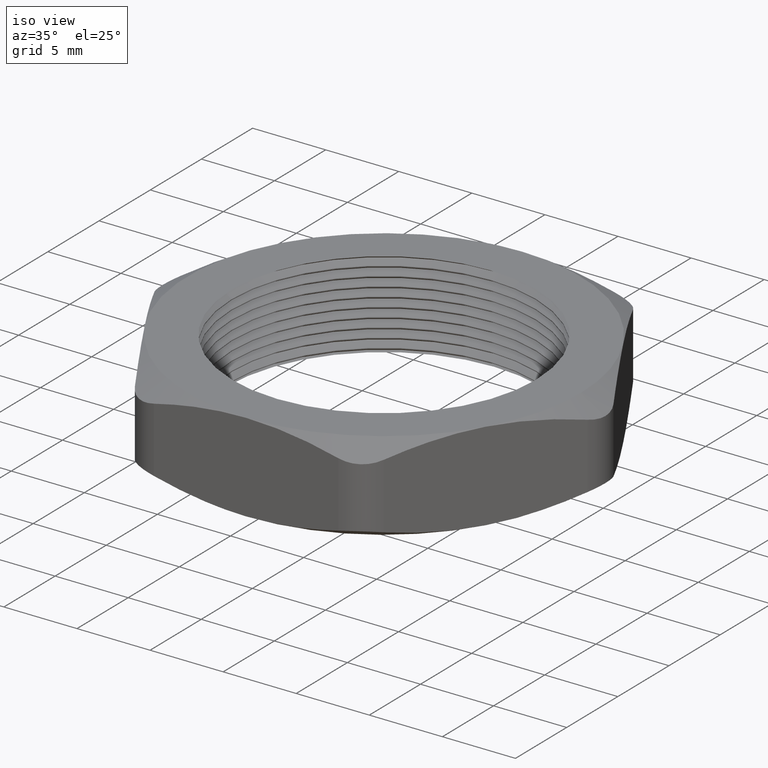
[diagram: clean part render]
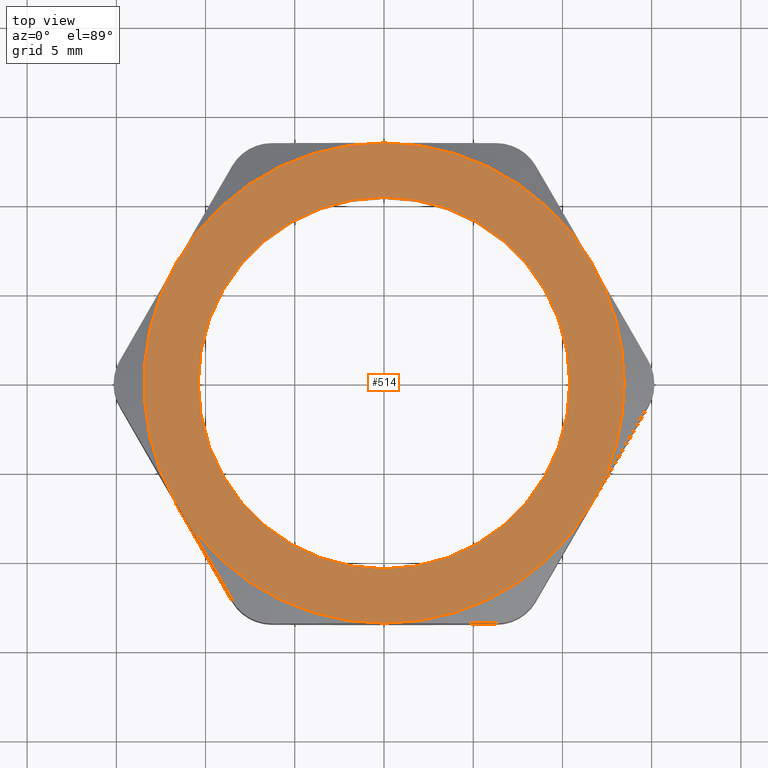
[diagram: tour spotlight — one face highlighted and labeled with its STEP entity id]
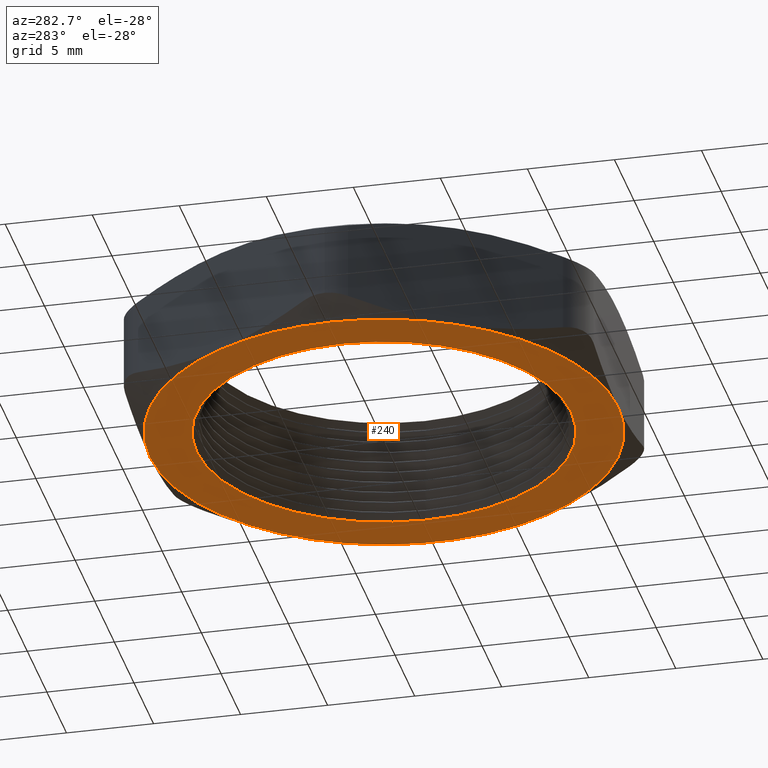
[diagram: tour spotlight — one face highlighted and labeled with its STEP entity id]
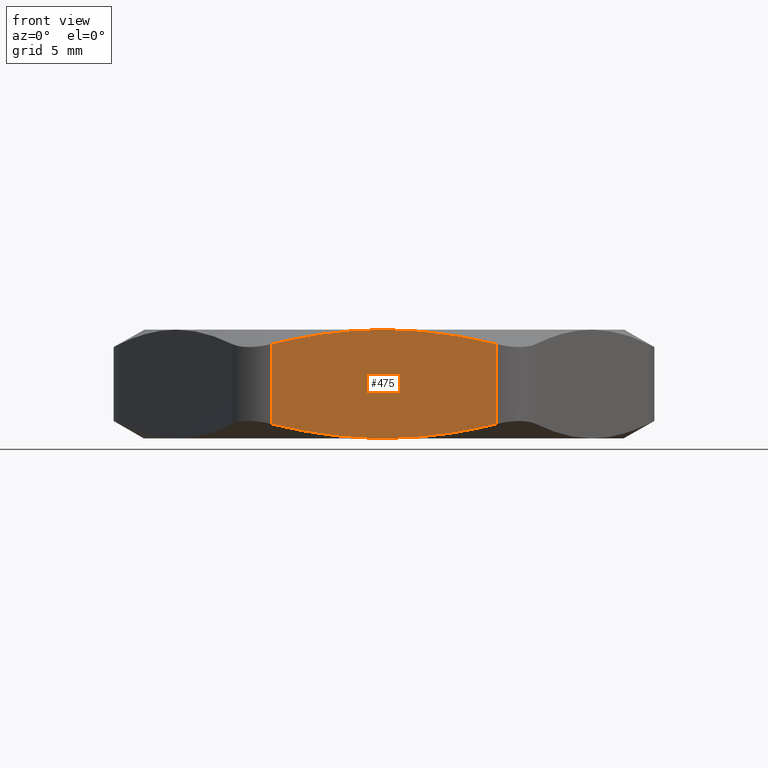
[diagram: tour spotlight — one face highlighted and labeled with its STEP entity id]
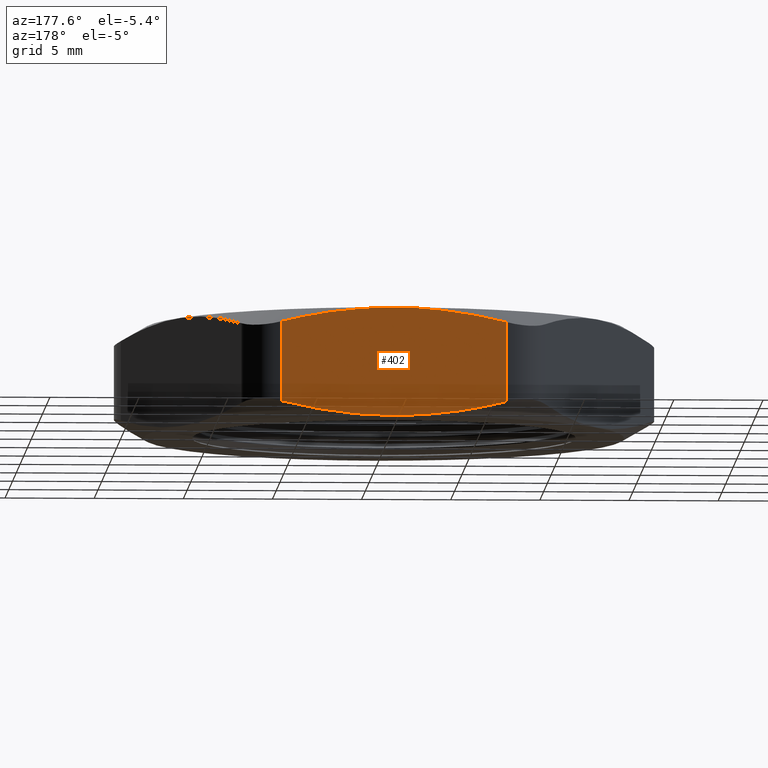
[diagram: tour spotlight — one face highlighted and labeled with its STEP entity id]
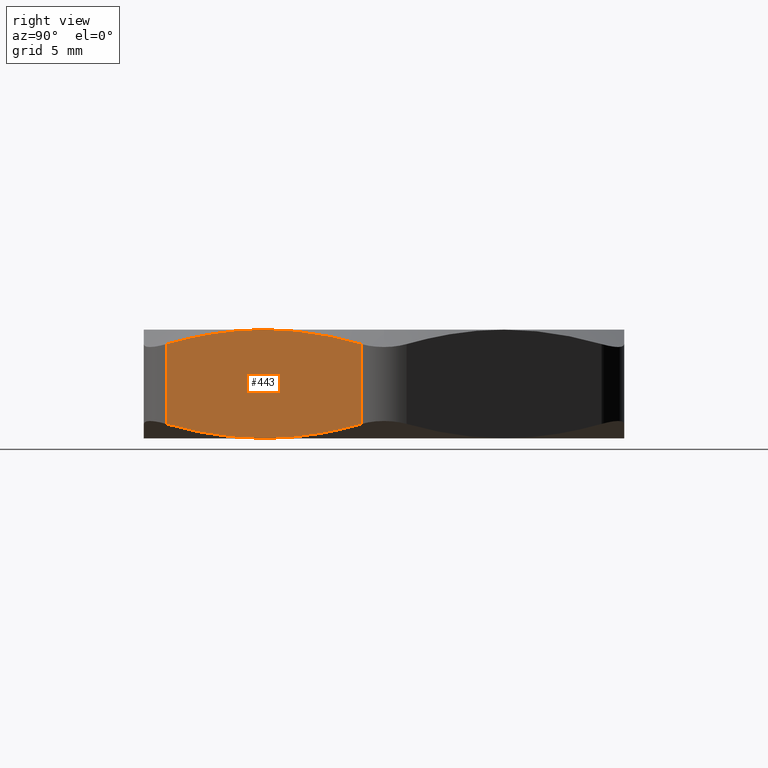
[diagram: tour spotlight — one face highlighted and labeled with its STEP entity id]
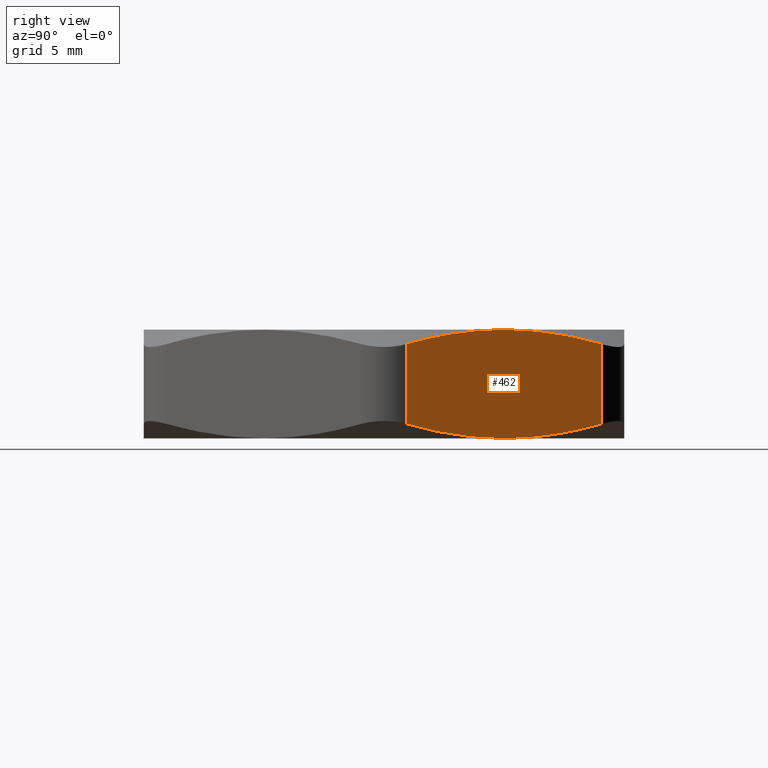
[diagram: tour spotlight — one face highlighted and labeled with its STEP entity id]
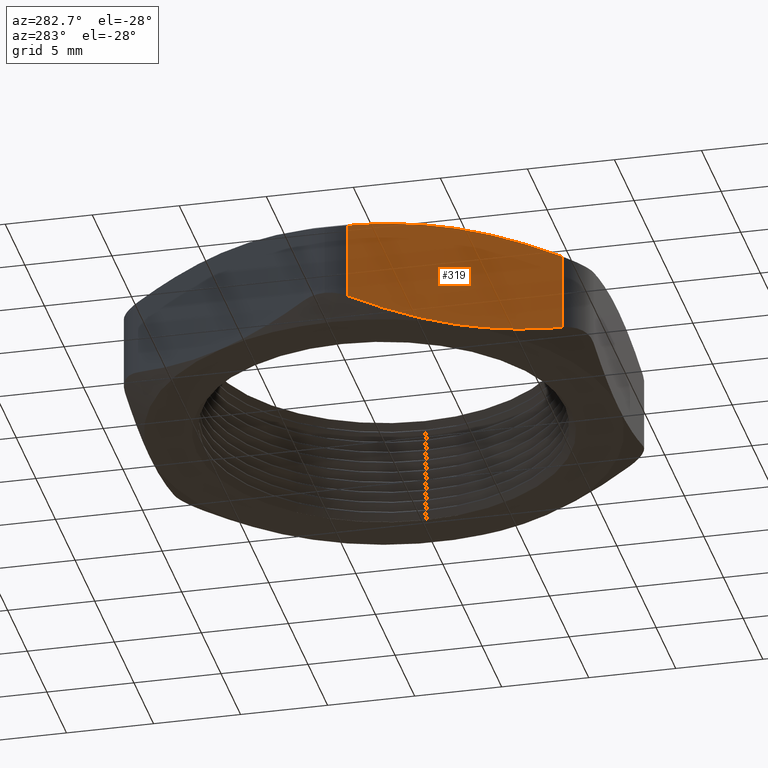
[diagram: tour spotlight — one face highlighted and labeled with its STEP entity id]
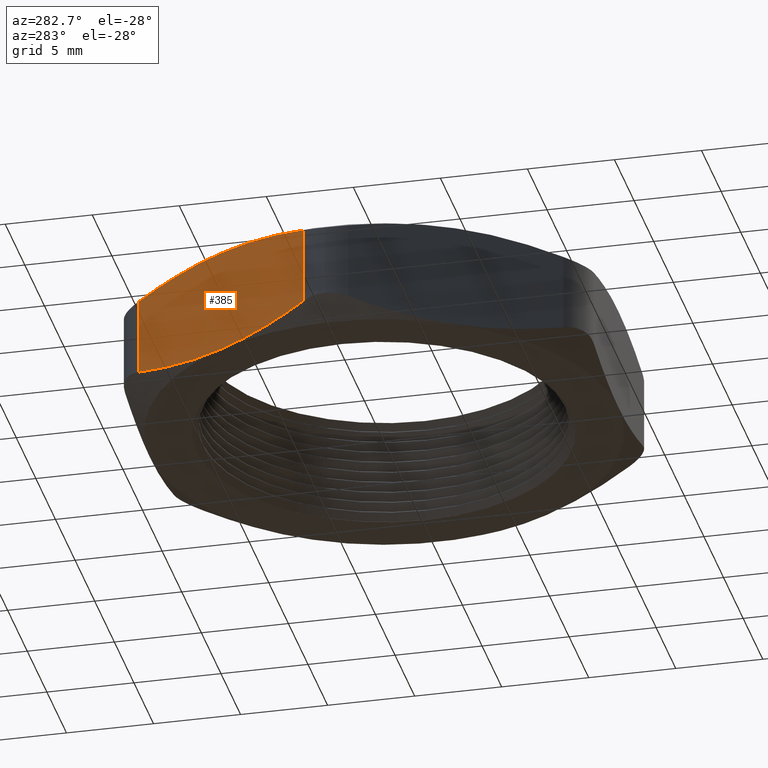
[diagram: tour spotlight — one face highlighted and labeled with its STEP entity id]
A machine part: a face-by-face anatomy tour. The part has 87 B-rep faces; the first image is the clean iso view, then the 8 largest visible faces are spotlighted one at a time (largest first), each with its STEP entity span.

Face 1 — top view, entity #514. In plain terms, the highlighted planar face has unit normal (0, 0, 1).
Definition (entity closure, byte-faithful):
#181 = EDGE_CURVE ( 'NONE', #182, #183, #1191, .T. ) ;
#182 = VERTEX_POINT ( 'NONE', #1186 ) ;
#183 = VERTEX_POINT ( 'NONE', #1185 ) ;
#226 = EDGE_CURVE ( 'NONE', #227, #228, #1228, .T. ) ;
#227 = VERTEX_POINT ( 'NONE', #1224 ) ;
#228 = VERTEX_POINT ( 'NONE', #1223 ) ;
#329 = VERTEX_POINT ( 'NONE', #1458 ) ;
#393 = VERTEX_POINT ( 'NONE', #1572 ) ;
#453 = VERTEX_POINT ( 'NONE', #1712 ) ;
#490 = ORIENTED_EDGE ( 'NONE', *, *, #491, .F. ) ;
#491 = EDGE_CURVE ( 'NONE', #228, #227, #1838, .T. ) ;
#492 = EDGE_LOOP ( 'NONE', ( #493, #495, #496, #498, #500, #502, #560 ) ) ;
#493 = ORIENTED_EDGE ( 'NONE', *, *, #494, .T. ) ;
#494 = EDGE_CURVE ( 'NONE', #453, #182, #1833, .T. ) ;
#495 = ORIENTED_EDGE ( 'NONE', *, *, #181, .T. ) ;
#496 = ORIENTED_EDGE ( 'NONE', *, *, #497, .T. ) ;
#497 = EDGE_CURVE ( 'NONE', #183, #505, #1828, .T. ) ;
#498 = ORIENTED_EDGE ( 'NONE', *, *, #499, .T. ) ;
#499 = EDGE_CURVE ( 'NONE', #505, #393, #1823, .T. ) ;
#500 = ORIENTED_EDGE ( 'NONE', *, *, #501, .T. ) ;
#501 = EDGE_CURVE ( 'NONE', #393, #329, #1818, .T. ) ;
#502 = ORIENTED_EDGE ( 'NONE', *, *, #559, .T. ) ;
#505 = VERTEX_POINT ( 'NONE', #1869 ) ;
#514 = ADVANCED_FACE ( 'NONE', ( #1897, #1895 ), #1888, .T. ) ;
#515 = EDGE_LOOP ( 'NONE', ( #516, #490 ) ) ;
#516 = ORIENTED_EDGE ( 'NONE', *, *, #226, .F. ) ;
#518 = VERTEX_POINT ( 'NONE', #1882 ) ;
#559 = EDGE_CURVE ( 'NONE', #329, #518, #1974, .T. ) ;
#560 = ORIENTED_EDGE ( 'NONE', *, *, #561, .T. ) ;
#561 = EDGE_CURVE ( 'NONE', #518, #453, #1967, .T. ) ;
#1185 = CARTESIAN_POINT ( 'NONE',  ( 0.4589934640057525800, 0.2649999999999999000, 0.2399999999999999900 ) ) ;
#1186 = CARTESIAN_POINT ( 'NONE',  ( 0.5300000000000001400, 0.0000000000000000000, 0.2399999999999999900 ) ) ;
#1187 = DIRECTION ( 'NONE',  ( 1.000000000000000000, 0.0000000000000000000, 0.0000000000000000000 ) ) ;
#1188 = DIRECTION ( 'NONE',  ( 0.0000000000000000000, 0.0000000000000000000, 1.000000000000000000 ) ) ;
#1189 = CARTESIAN_POINT ( 'NONE',  ( 0.0000000000000000000, 0.0000000000000000000, 0.2399999999999999900 ) ) ;
#1190 = AXIS2_PLACEMENT_3D ( 'NONE', #1189, #1188, #1187 ) ;
#1191 = CIRCLE ( 'NONE', #1190, 0.5300000000000001400 ) ;
#1223 = CARTESIAN_POINT ( 'NONE',  ( 0.4099999999999999800, 5.143516556418883200E-017, 0.2399999999999999900 ) ) ;
#1224 = CARTESIAN_POINT ( 'NONE',  ( -0.4099999999999999800, 0.0000000000000000000, 0.2399999999999999900 ) ) ;
#1225 = DIRECTION ( 'NONE',  ( 1.000000000000000000, 0.0000000000000000000, 0.0000000000000000000 ) ) ;
#1226 = DIRECTION ( 'NONE',  ( 0.0000000000000000000, 0.0000000000000000000, 1.000000000000000000 ) ) ;
#1227 = AXIS2_PLACEMENT_3D ( 'NONE', #1234, #1226, #1225 ) ;
#1228 = CIRCLE ( 'NONE', #1227, 0.4099999999999999800 ) ;
#1234 = CARTESIAN_POINT ( 'NONE',  ( 0.0000000000000000000, 0.0000000000000000000, 0.2399999999999999900 ) ) ;
#1458 = CARTESIAN_POINT ( 'NONE',  ( -0.4589934640057526900, -0.2649999999999999000, 0.2399999999999999900 ) ) ;
#1572 = CARTESIAN_POINT ( 'NONE',  ( -0.4589934640057525800, 0.2650000000000001800, 0.2399999999999999900 ) ) ;
#1712 = CARTESIAN_POINT ( 'NONE',  ( 0.4589934640057524700, -0.2650000000000001200, 0.2399999999999999900 ) ) ;
#1817 = CARTESIAN_POINT ( 'NONE',  ( 0.0000000000000000000, 0.0000000000000000000, 0.2399999999999999900 ) ) ;
#1818 = CIRCLE ( 'NONE', #1873, 0.5300000000000001400 ) ;
#1819 = DIRECTION ( 'NONE',  ( 1.000000000000000000, 0.0000000000000000000, 0.0000000000000000000 ) ) ;
#1820 = DIRECTION ( 'NONE',  ( 0.0000000000000000000, 0.0000000000000000000, 1.000000000000000000 ) ) ;
#1821 = CARTESIAN_POINT ( 'NONE',  ( 0.0000000000000000000, 0.0000000000000000000, 0.2399999999999999900 ) ) ;
#1822 = AXIS2_PLACEMENT_3D ( 'NONE', #1821, #1820, #1819 ) ;
#1823 = CIRCLE ( 'NONE', #1822, 0.5300000000000001400 ) ;
#1824 = DIRECTION ( 'NONE',  ( 1.000000000000000000, 0.0000000000000000000, 0.0000000000000000000 ) ) ;
#1825 = DIRECTION ( 'NONE',  ( 0.0000000000000000000, 0.0000000000000000000, 1.000000000000000000 ) ) ;
#1826 = CARTESIAN_POINT ( 'NONE',  ( 0.0000000000000000000, 0.0000000000000000000, 0.2399999999999999900 ) ) ;
#1827 = AXIS2_PLACEMENT_3D ( 'NONE', #1826, #1825, #1824 ) ;
#1828 = CIRCLE ( 'NONE', #1827, 0.5300000000000001400 ) ;
#1829 = DIRECTION ( 'NONE',  ( 1.000000000000000000, 0.0000000000000000000, 0.0000000000000000000 ) ) ;
#1830 = DIRECTION ( 'NONE',  ( 0.0000000000000000000, 0.0000000000000000000, 1.000000000000000000 ) ) ;
#1831 = CARTESIAN_POINT ( 'NONE',  ( 0.0000000000000000000, 0.0000000000000000000, 0.2399999999999999900 ) ) ;
#1832 = AXIS2_PLACEMENT_3D ( 'NONE', #1831, #1830, #1829 ) ;
#1833 = CIRCLE ( 'NONE', #1832, 0.5300000000000001400 ) ;
#1834 = DIRECTION ( 'NONE',  ( 1.000000000000000000, 0.0000000000000000000, 0.0000000000000000000 ) ) ;
#1835 = DIRECTION ( 'NONE',  ( 0.0000000000000000000, 0.0000000000000000000, 1.000000000000000000 ) ) ;
#1836 = CARTESIAN_POINT ( 'NONE',  ( 0.0000000000000000000, 0.0000000000000000000, 0.2399999999999999900 ) ) ;
#1837 = AXIS2_PLACEMENT_3D ( 'NONE', #1836, #1835, #1834 ) ;
#1838 = CIRCLE ( 'NONE', #1837, 0.4099999999999999800 ) ;
#1869 = CARTESIAN_POINT ( 'NONE',  ( 0.0000000000000000000, 0.5300000000000001400, 0.2399999999999999900 ) ) ;
#1871 = DIRECTION ( 'NONE',  ( 1.000000000000000000, 0.0000000000000000000, 0.0000000000000000000 ) ) ;
#1872 = DIRECTION ( 'NONE',  ( 0.0000000000000000000, 0.0000000000000000000, 1.000000000000000000 ) ) ;
#1873 = AXIS2_PLACEMENT_3D ( 'NONE', #1817, #1872, #1871 ) ;
#1882 = CARTESIAN_POINT ( 'NONE',  ( 1.182924880895400300E-016, -0.5299999999999999200, 0.2399999999999999900 ) ) ;
#1884 = DIRECTION ( 'NONE',  ( 1.000000000000000000, 0.0000000000000000000, 0.0000000000000000000 ) ) ;
#1885 = DIRECTION ( 'NONE',  ( 0.0000000000000000000, 0.0000000000000000000, 1.000000000000000000 ) ) ;
#1886 = CARTESIAN_POINT ( 'NONE',  ( -0.6119912853410033300, 2.736046758430671800E-016, 0.2399999999999999900 ) ) ;
#1887 = AXIS2_PLACEMENT_3D ( 'NONE', #1886, #1885, #1884 ) ;
#1888 = PLANE ( 'NONE',  #1887 ) ;
#1895 = FACE_OUTER_BOUND ( 'NONE', #492, .T. ) ;
#1897 = FACE_BOUND ( 'NONE', #515, .T. ) ;
#1963 = DIRECTION ( 'NONE',  ( 1.000000000000000000, 0.0000000000000000000, 0.0000000000000000000 ) ) ;
#1964 = DIRECTION ( 'NONE',  ( 0.0000000000000000000, 0.0000000000000000000, 1.000000000000000000 ) ) ;
#1965 = CARTESIAN_POINT ( 'NONE',  ( 0.0000000000000000000, 0.0000000000000000000, 0.2399999999999999900 ) ) ;
#1966 = AXIS2_PLACEMENT_3D ( 'NONE', #1965, #1964, #1963 ) ;
#1967 = CIRCLE ( 'NONE', #1966, 0.5300000000000001400 ) ;
#1968 = DIRECTION ( 'NONE',  ( 1.000000000000000000, 0.0000000000000000000, 0.0000000000000000000 ) ) ;
#1969 = DIRECTION ( 'NONE',  ( 0.0000000000000000000, 0.0000000000000000000, 1.000000000000000000 ) ) ;
#1970 = CARTESIAN_POINT ( 'NONE',  ( 0.0000000000000000000, 0.0000000000000000000, 0.2399999999999999900 ) ) ;
#1971 = AXIS2_PLACEMENT_3D ( 'NONE', #1970, #1969, #1968 ) ;
#1974 = CIRCLE ( 'NONE', #1971, 0.5300000000000001400 ) ;

Face 2 — auxiliary view, entity #240. In plain terms, the highlighted planar face has unit normal (0, 0, 1).
Definition (entity closure, byte-faithful):
#42 = EDGE_CURVE ( 'NONE', #43, #44, #857, .T. ) ;
#43 = VERTEX_POINT ( 'NONE', #917 ) ;
#44 = VERTEX_POINT ( 'NONE', #916 ) ;
#168 = EDGE_CURVE ( 'NONE', #169, #170, #1113, .T. ) ;
#169 = VERTEX_POINT ( 'NONE', #1109 ) ;
#170 = VERTEX_POINT ( 'NONE', #1108 ) ;
#240 = ADVANCED_FACE ( 'NONE', ( #1266, #1265 ), #1264, .F. ) ;
#241 = EDGE_LOOP ( 'NONE', ( #242, #246, #249, #252, #255, #257, #258 ) ) ;
#242 = ORIENTED_EDGE ( 'NONE', *, *, #243, .F. ) ;
#243 = EDGE_CURVE ( 'NONE', #244, #245, #1314, .T. ) ;
#244 = VERTEX_POINT ( 'NONE', #1309 ) ;
#245 = VERTEX_POINT ( 'NONE', #1308 ) ;
#246 = ORIENTED_EDGE ( 'NONE', *, *, #247, .F. ) ;
#247 = EDGE_CURVE ( 'NONE', #248, #244, #1307, .T. ) ;
#248 = VERTEX_POINT ( 'NONE', #1302 ) ;
#249 = ORIENTED_EDGE ( 'NONE', *, *, #250, .F. ) ;
#250 = EDGE_CURVE ( 'NONE', #251, #248, #1301, .T. ) ;
#251 = VERTEX_POINT ( 'NONE', #1296 ) ;
#252 = ORIENTED_EDGE ( 'NONE', *, *, #253, .F. ) ;
#253 = EDGE_CURVE ( 'NONE', #254, #251, #1295, .T. ) ;
#254 = VERTEX_POINT ( 'NONE', #1290 ) ;
#255 = ORIENTED_EDGE ( 'NONE', *, *, #256, .F. ) ;
#256 = EDGE_CURVE ( 'NONE', #170, #254, #1289, .T. ) ;
#257 = ORIENTED_EDGE ( 'NONE', *, *, #168, .F. ) ;
#258 = ORIENTED_EDGE ( 'NONE', *, *, #259, .T. ) ;
#259 = EDGE_CURVE ( 'NONE', #169, #245, #1284, .T. ) ;
#260 = EDGE_LOOP ( 'NONE', ( #261, #262 ) ) ;
#261 = ORIENTED_EDGE ( 'NONE', *, *, #42, .F. ) ;
#262 = ORIENTED_EDGE ( 'NONE', *, *, #263, .F. ) ;
#263 = EDGE_CURVE ( 'NONE', #44, #43, #1342, .T. ) ;
#854 = DIRECTION ( 'NONE',  ( 1.000000000000000000, 0.0000000000000000000, 0.0000000000000000000 ) ) ;
#855 = DIRECTION ( 'NONE',  ( 0.0000000000000000000, 0.0000000000000000000, -1.000000000000000000 ) ) ;
#856 = AXIS2_PLACEMENT_3D ( 'NONE', #862, #855, #854 ) ;
#857 = CIRCLE ( 'NONE', #856, 0.4240192378864664500 ) ;
#862 = CARTESIAN_POINT ( 'NONE',  ( 0.0000000000000000000, 0.0000000000000000000, 0.0000000000000000000 ) ) ;
#916 = CARTESIAN_POINT ( 'NONE',  ( -0.4240192378864664500, 5.229359630439615700E-017, 0.0000000000000000000 ) ) ;
#917 = CARTESIAN_POINT ( 'NONE',  ( 0.4240192378864664500, 0.0000000000000000000, 0.0000000000000000000 ) ) ;
#1108 = CARTESIAN_POINT ( 'NONE',  ( -0.5300000000000001400, 0.0000000000000000000, 0.0000000000000000000 ) ) ;
#1109 = CARTESIAN_POINT ( 'NONE',  ( -0.4589934640057525800, 0.2650000000000002400, 0.0000000000000000000 ) ) ;
#1110 = DIRECTION ( 'NONE',  ( 1.000000000000000000, 0.0000000000000000000, 0.0000000000000000000 ) ) ;
#1111 = DIRECTION ( 'NONE',  ( 0.0000000000000000000, 0.0000000000000000000, 1.000000000000000000 ) ) ;
#1112 = AXIS2_PLACEMENT_3D ( 'NONE', #1118, #1111, #1110 ) ;
#1113 = CIRCLE ( 'NONE', #1112, 0.5300000000000001400 ) ;
#1118 = CARTESIAN_POINT ( 'NONE',  ( 0.0000000000000000000, 0.0000000000000000000, 0.0000000000000000000 ) ) ;
#1254 = DIRECTION ( 'NONE',  ( 1.000000000000000000, 0.0000000000000000000, 0.0000000000000000000 ) ) ;
#1255 = DIRECTION ( 'NONE',  ( 0.0000000000000000000, 0.0000000000000000000, 1.000000000000000000 ) ) ;
#1256 = CARTESIAN_POINT ( 'NONE',  ( -0.6119912853410033300, 2.736046758430671800E-016, 0.0000000000000000000 ) ) ;
#1257 = AXIS2_PLACEMENT_3D ( 'NONE', #1256, #1255, #1254 ) ;
#1264 = PLANE ( 'NONE',  #1257 ) ;
#1265 = FACE_BOUND ( 'NONE', #260, .T. ) ;
#1266 = FACE_OUTER_BOUND ( 'NONE', #241, .T. ) ;
#1284 = CIRCLE ( 'NONE', #1346, 0.5300000000000001400 ) ;
#1285 = DIRECTION ( 'NONE',  ( 1.000000000000000000, 0.0000000000000000000, 0.0000000000000000000 ) ) ;
#1286 = DIRECTION ( 'NONE',  ( 0.0000000000000000000, 0.0000000000000000000, 1.000000000000000000 ) ) ;
#1287 = CARTESIAN_POINT ( 'NONE',  ( 0.0000000000000000000, 0.0000000000000000000, 0.0000000000000000000 ) ) ;
#1288 = AXIS2_PLACEMENT_3D ( 'NONE', #1287, #1286, #1285 ) ;
#1289 = CIRCLE ( 'NONE', #1288, 0.5300000000000001400 ) ;
#1290 = CARTESIAN_POINT ( 'NONE',  ( -0.4589934640057527500, -0.2649999999999999600, 0.0000000000000000000 ) ) ;
#1291 = DIRECTION ( 'NONE',  ( 1.000000000000000000, 0.0000000000000000000, 0.0000000000000000000 ) ) ;
#1292 = DIRECTION ( 'NONE',  ( 0.0000000000000000000, 0.0000000000000000000, 1.000000000000000000 ) ) ;
#1293 = CARTESIAN_POINT ( 'NONE',  ( 0.0000000000000000000, 0.0000000000000000000, 0.0000000000000000000 ) ) ;
#1294 = AXIS2_PLACEMENT_3D ( 'NONE', #1293, #1292, #1291 ) ;
#1295 = CIRCLE ( 'NONE', #1294, 0.5300000000000001400 ) ;
#1296 = CARTESIAN_POINT ( 'NONE',  ( 1.182924880895401000E-016, -0.5300000000000002500, 0.0000000000000000000 ) ) ;
#1297 = DIRECTION ( 'NONE',  ( 1.000000000000000000, 0.0000000000000000000, 0.0000000000000000000 ) ) ;
#1298 = DIRECTION ( 'NONE',  ( 0.0000000000000000000, 0.0000000000000000000, 1.000000000000000000 ) ) ;
#1299 = CARTESIAN_POINT ( 'NONE',  ( 0.0000000000000000000, 0.0000000000000000000, 0.0000000000000000000 ) ) ;
#1300 = AXIS2_PLACEMENT_3D ( 'NONE', #1299, #1298, #1297 ) ;
#1301 = CIRCLE ( 'NONE', #1300, 0.5300000000000001400 ) ;
#1302 = CARTESIAN_POINT ( 'NONE',  ( 0.4589934640057525800, -0.2650000000000002400, 0.0000000000000000000 ) ) ;
#1303 = DIRECTION ( 'NONE',  ( 1.000000000000000000, 0.0000000000000000000, 0.0000000000000000000 ) ) ;
#1304 = DIRECTION ( 'NONE',  ( 0.0000000000000000000, 0.0000000000000000000, 1.000000000000000000 ) ) ;
#1305 = CARTESIAN_POINT ( 'NONE',  ( 0.0000000000000000000, 0.0000000000000000000, 0.0000000000000000000 ) ) ;
#1306 = AXIS2_PLACEMENT_3D ( 'NONE', #1305, #1304, #1303 ) ;
#1307 = CIRCLE ( 'NONE', #1306, 0.5300000000000001400 ) ;
#1308 = CARTESIAN_POINT ( 'NONE',  ( 0.0000000000000000000, 0.5300000000000001400, 0.0000000000000000000 ) ) ;
#1309 = CARTESIAN_POINT ( 'NONE',  ( 0.4589934640057526900, 0.2649999999999999000, 0.0000000000000000000 ) ) ;
#1310 = DIRECTION ( 'NONE',  ( 1.000000000000000000, 0.0000000000000000000, 0.0000000000000000000 ) ) ;
#1311 = DIRECTION ( 'NONE',  ( 0.0000000000000000000, 0.0000000000000000000, 1.000000000000000000 ) ) ;
#1312 = CARTESIAN_POINT ( 'NONE',  ( 0.0000000000000000000, 0.0000000000000000000, 0.0000000000000000000 ) ) ;
#1313 = AXIS2_PLACEMENT_3D ( 'NONE', #1312, #1311, #1310 ) ;
#1314 = CIRCLE ( 'NONE', #1313, 0.5300000000000001400 ) ;
#1338 = DIRECTION ( 'NONE',  ( 1.000000000000000000, 0.0000000000000000000, 0.0000000000000000000 ) ) ;
#1339 = DIRECTION ( 'NONE',  ( 0.0000000000000000000, 0.0000000000000000000, -1.000000000000000000 ) ) ;
#1340 = CARTESIAN_POINT ( 'NONE',  ( 0.0000000000000000000, 0.0000000000000000000, 0.0000000000000000000 ) ) ;
#1341 = AXIS2_PLACEMENT_3D ( 'NONE', #1340, #1339, #1338 ) ;
#1342 = CIRCLE ( 'NONE', #1341, 0.4240192378864664500 ) ;
#1343 = DIRECTION ( 'NONE',  ( -1.000000000000000000, 0.0000000000000000000, 0.0000000000000000000 ) ) ;
#1344 = DIRECTION ( 'NONE',  ( 0.0000000000000000000, 0.0000000000000000000, -1.000000000000000000 ) ) ;
#1345 = CARTESIAN_POINT ( 'NONE',  ( 0.0000000000000000000, 0.0000000000000000000, 0.0000000000000000000 ) ) ;
#1346 = AXIS2_PLACEMENT_3D ( 'NONE', #1345, #1344, #1343 ) ;

Face 3 — front view, entity #475. In plain terms, the highlighted planar face has unit normal (-0, 1, 0).
Definition (entity closure, byte-faithful):
#251 = VERTEX_POINT ( 'NONE', #1296 ) ;
#441 = ORIENTED_EDGE ( 'NONE', *, *, #442, .F. ) ;
#442 = EDGE_CURVE ( 'NONE', #251, #524, #1687, .T. ) ;
#464 = ORIENTED_EDGE ( 'NONE', *, *, #465, .F. ) ;
#465 = EDGE_CURVE ( 'NONE', #471, #251, #1787, .T. ) ;
#466 = EDGE_CURVE ( 'NONE', #471, #473, #1786, .T. ) ;
#467 = ORIENTED_EDGE ( 'NONE', *, *, #517, .F. ) ;
#471 = VERTEX_POINT ( 'NONE', #1772 ) ;
#472 = ORIENTED_EDGE ( 'NONE', *, *, #466, .T. ) ;
#473 = VERTEX_POINT ( 'NONE', #1771 ) ;
#475 = ADVANCED_FACE ( 'NONE', ( #1770 ), #1767, .F. ) ;
#476 = EDGE_LOOP ( 'NONE', ( #464, #472, #467, #519, #522, #441 ) ) ;
#517 = EDGE_CURVE ( 'NONE', #518, #473, #1883, .T. ) ;
#518 = VERTEX_POINT ( 'NONE', #1882 ) ;
#519 = ORIENTED_EDGE ( 'NONE', *, *, #520, .F. ) ;
#520 = EDGE_CURVE ( 'NONE', #521, #518, #1875, .T. ) ;
#521 = VERTEX_POINT ( 'NONE', #1874 ) ;
#522 = ORIENTED_EDGE ( 'NONE', *, *, #523, .T. ) ;
#523 = EDGE_CURVE ( 'NONE', #521, #524, #1921, .T. ) ;
#524 = VERTEX_POINT ( 'NONE', #1917 ) ;
#1192 = CARTESIAN_POINT ( 'NONE',  ( -0.2073285774609583100, -0.5299999999999999200, 0.02188196362009233600 ) ) ;
#1296 = CARTESIAN_POINT ( 'NONE',  ( 1.182924880895401000E-016, -0.5300000000000002500, 0.0000000000000000000 ) ) ;
#1446 = CARTESIAN_POINT ( 'NONE',  ( -0.2482606157515391800, -0.5299999999999999200, 0.03190638126214304100 ) ) ;
#1679 = CARTESIAN_POINT ( 'NONE',  ( -0.1662082438501322800, -0.5299999999999996900, 0.01385031737146774600 ) ) ;
#1680 = CARTESIAN_POINT ( 'NONE',  ( -0.08348449454538817100, -0.5300000000000000300, 0.002899590362351120500 ) ) ;
#1681 = CARTESIAN_POINT ( 'NONE',  ( -0.04187923721987506200, -0.5299999999999996900, -1.632706027463406800E-016 ) ) ;
#1682 = CARTESIAN_POINT ( 'NONE',  ( 1.182924880895401000E-016, -0.5300000000000002500, 0.0000000000000000000 ) ) ;
#1687 = B_SPLINE_CURVE_WITH_KNOTS ( 'NONE', 3,
 ( #1682, #1681, #1680, #1679, #1192, #1446 ),
 .UNSPECIFIED., .F., .F.,
 ( 4, 2, 4 ),
 ( 0.04638433166988755600, 0.04956448242278858900, 0.05274463317568962200 ),
 .UNSPECIFIED. ) ;
#1766 = CARTESIAN_POINT ( 'NONE',  ( -0.3059956426705018300, -0.5299999999999999200, 0.2399999999999999900 ) ) ;
#1767 = PLANE ( 'NONE',  #1769 ) ;
#1769 = AXIS2_PLACEMENT_3D ( 'NONE', #1766, #1810, #1809 ) ;
#1770 = FACE_OUTER_BOUND ( 'NONE', #476, .T. ) ;
#1771 = CARTESIAN_POINT ( 'NONE',  ( 0.2482606157515391000, -0.5299999999999998000, 0.2080936187378570100 ) ) ;
#1772 = CARTESIAN_POINT ( 'NONE',  ( 0.2482606157515390400, -0.5299999999999998000, 0.03190638126214297800 ) ) ;
#1777 = DIRECTION ( 'NONE',  ( 0.0000000000000000000, 0.0000000000000000000, 1.000000000000000000 ) ) ;
#1778 = VECTOR ( 'NONE', #1777, 39.37007874015748100 ) ;
#1779 = CARTESIAN_POINT ( 'NONE',  ( 1.182924880895401000E-016, -0.5300000000000002500, 0.0000000000000000000 ) ) ;
#1780 = CARTESIAN_POINT ( 'NONE',  ( 0.04181844681592656500, -0.5299999999999999200, -1.517989754291958800E-016 ) ) ;
#1781 = CARTESIAN_POINT ( 'NONE',  ( 0.08415995573735153600, -0.5299999999999998000, 0.002956938485251537000 ) ) ;
#1782 = CARTESIAN_POINT ( 'NONE',  ( 0.1670878377893607300, -0.5299999999999999200, 0.01399942999771794000 ) ) ;
#1783 = CARTESIAN_POINT ( 'NONE',  ( 0.2079115416018110200, -0.5299999999999996900, 0.02202473383780686700 ) ) ;
#1784 = CARTESIAN_POINT ( 'NONE',  ( 0.2482606157515390400, -0.5299999999999998000, 0.03190638126214297800 ) ) ;
#1785 = CARTESIAN_POINT ( 'NONE',  ( 0.2482606157515391300, -0.5299999999999998000, 0.2399999999999999900 ) ) ;
#1786 = LINE ( 'NONE', #1785, #1778 ) ;
#1787 = B_SPLINE_CURVE_WITH_KNOTS ( 'NONE', 3,
 ( #1784, #1783, #1782, #1781, #1780, #1779 ),
 .UNSPECIFIED., .F., .F.,
 ( 4, 2, 4 ),
 ( 0.04003326255042875800, 0.04320879711015815400, 0.04638433166988755600 ),
 .UNSPECIFIED. ) ;
#1809 = DIRECTION ( 'NONE',  ( -1.000000000000000000, -2.231933737538491700E-016, 0.0000000000000000000 ) ) ;
#1810 = DIRECTION ( 'NONE',  ( -2.231933737538491700E-016, 1.000000000000000000, 0.0000000000000000000 ) ) ;
#1874 = CARTESIAN_POINT ( 'NONE',  ( -0.2482606157515391800, -0.5299999999999999200, 0.2080936187378569800 ) ) ;
#1875 = B_SPLINE_CURVE_WITH_KNOTS ( 'NONE', 3,
 ( #1927, #1926, #1925, #1924, #1923, #1922 ),
 .UNSPECIFIED., .F., .F.,
 ( 4, 2, 4 ),
 ( 0.01613690402528469800, 0.01931818806732733500, 0.02249947210936997100 ),
 .UNSPECIFIED. ) ;
#1876 = CARTESIAN_POINT ( 'NONE',  ( 0.2482606157515391000, -0.5299999999999998000, 0.2080936187378570100 ) ) ;
#1877 = CARTESIAN_POINT ( 'NONE',  ( 0.2079115416018110000, -0.5299999999999999200, 0.2179752661621930900 ) ) ;
#1878 = CARTESIAN_POINT ( 'NONE',  ( 0.1670878377893605700, -0.5299999999999999200, 0.2260005700022820200 ) ) ;
#1879 = CARTESIAN_POINT ( 'NONE',  ( 0.08415995573735125800, -0.5300000000000000300, 0.2370430615147484900 ) ) ;
#1880 = CARTESIAN_POINT ( 'NONE',  ( 0.04181844681592635600, -0.5299999999999996900, 0.2400000000000001000 ) ) ;
#1881 = CARTESIAN_POINT ( 'NONE',  ( 1.182924880895400300E-016, -0.5299999999999999200, 0.2399999999999999900 ) ) ;
#1882 = CARTESIAN_POINT ( 'NONE',  ( 1.182924880895400300E-016, -0.5299999999999999200, 0.2399999999999999900 ) ) ;
#1883 = B_SPLINE_CURVE_WITH_KNOTS ( 'NONE', 3,
 ( #1881, #1880, #1879, #1878, #1877, #1876 ),
 .UNSPECIFIED., .F., .F.,
 ( 4, 2, 4 ),
 ( 0.02249947210936997100, 0.02567613831319896400, 0.02885280451702795800 ),
 .UNSPECIFIED. ) ;
#1917 = CARTESIAN_POINT ( 'NONE',  ( -0.2482606157515391800, -0.5299999999999999200, 0.03190638126214304100 ) ) ;
#1918 = DIRECTION ( 'NONE',  ( 0.0000000000000000000, 0.0000000000000000000, -1.000000000000000000 ) ) ;
#1919 = VECTOR ( 'NONE', #1918, 39.37007874015748100 ) ;
#1920 = CARTESIAN_POINT ( 'NONE',  ( -0.2482606157515392400, -0.5299999999999999200, 0.2399999999999999900 ) ) ;
#1921 = LINE ( 'NONE', #1920, #1919 ) ;
#1922 = CARTESIAN_POINT ( 'NONE',  ( 1.182924880895400300E-016, -0.5299999999999999200, 0.2399999999999999900 ) ) ;
#1923 = CARTESIAN_POINT ( 'NONE',  ( -0.04187923721987530500, -0.5299999999999999200, 0.2400000000000001900 ) ) ;
#1924 = CARTESIAN_POINT ( 'NONE',  ( -0.08348449454538835200, -0.5299999999999998000, 0.2371004096376488300 ) ) ;
#1925 = CARTESIAN_POINT ( 'NONE',  ( -0.1662082438501325300, -0.5300000000000001400, 0.2261496826285322400 ) ) ;
#1926 = CARTESIAN_POINT ( 'NONE',  ( -0.2073285774609584200, -0.5299999999999996900, 0.2181180363799075900 ) ) ;
#1927 = CARTESIAN_POINT ( 'NONE',  ( -0.2482606157515391800, -0.5299999999999999200, 0.2080936187378569800 ) ) ;

Face 4 — auxiliary view, entity #402. In plain terms, the highlighted planar face has unit normal (0, -1, 0).
Definition (entity closure, byte-faithful):
#245 = VERTEX_POINT ( 'NONE', #1308 ) ;
#402 = ADVANCED_FACE ( 'NONE', ( #1605 ), #1602, .F. ) ;
#403 = EDGE_LOOP ( 'NONE', ( #414, #479, #503, #506, #509, #512 ) ) ;
#414 = ORIENTED_EDGE ( 'NONE', *, *, #480, .F. ) ;
#477 = VERTEX_POINT ( 'NONE', #1808 ) ;
#478 = EDGE_CURVE ( 'NONE', #481, #477, #1807, .T. ) ;
#479 = ORIENTED_EDGE ( 'NONE', *, *, #478, .T. ) ;
#480 = EDGE_CURVE ( 'NONE', #481, #245, #1803, .T. ) ;
#481 = VERTEX_POINT ( 'NONE', #1802 ) ;
#503 = ORIENTED_EDGE ( 'NONE', *, *, #504, .F. ) ;
#504 = EDGE_CURVE ( 'NONE', #505, #477, #1870, .T. ) ;
#505 = VERTEX_POINT ( 'NONE', #1869 ) ;
#506 = ORIENTED_EDGE ( 'NONE', *, *, #507, .F. ) ;
#507 = EDGE_CURVE ( 'NONE', #508, #505, #1862, .T. ) ;
#508 = VERTEX_POINT ( 'NONE', #1861 ) ;
#509 = ORIENTED_EDGE ( 'NONE', *, *, #510, .T. ) ;
#510 = EDGE_CURVE ( 'NONE', #508, #511, #1854, .T. ) ;
#511 = VERTEX_POINT ( 'NONE', #1850 ) ;
#512 = ORIENTED_EDGE ( 'NONE', *, *, #513, .F. ) ;
#513 = EDGE_CURVE ( 'NONE', #245, #511, #1896, .T. ) ;
#1308 = CARTESIAN_POINT ( 'NONE',  ( 0.0000000000000000000, 0.5300000000000001400, 0.0000000000000000000 ) ) ;
#1591 = DIRECTION ( 'NONE',  ( 0.0000000000000000000, 0.0000000000000000000, -1.000000000000000000 ) ) ;
#1592 = DIRECTION ( 'NONE',  ( 0.0000000000000000000, -1.000000000000000000, 0.0000000000000000000 ) ) ;
#1601 = CARTESIAN_POINT ( 'NONE',  ( 0.3059956426705017800, 0.5300000000000001400, 0.2399999999999999900 ) ) ;
#1602 = PLANE ( 'NONE',  #1604 ) ;
#1604 = AXIS2_PLACEMENT_3D ( 'NONE', #1601, #1592, #1591 ) ;
#1605 = FACE_OUTER_BOUND ( 'NONE', #403, .T. ) ;
#1796 = CARTESIAN_POINT ( 'NONE',  ( 0.0000000000000000000, 0.5300000000000001400, 0.0000000000000000000 ) ) ;
#1797 = CARTESIAN_POINT ( 'NONE',  ( -0.04187923722122014600, 0.5300000000000001400, 3.734948428837858700E-018 ) ) ;
#1798 = CARTESIAN_POINT ( 'NONE',  ( -0.08348449454732785600, 0.5300000000000002500, 0.002899590362529390700 ) ) ;
#1799 = CARTESIAN_POINT ( 'NONE',  ( -0.1662082438519784900, 0.5300000000000001400, 0.01385031737179092400 ) ) ;
#1800 = CARTESIAN_POINT ( 'NONE',  ( -0.2073285774621216600, 0.5300000000000001400, 0.02188196362037738200 ) ) ;
#1801 = CARTESIAN_POINT ( 'NONE',  ( -0.2482606157515390400, 0.5300000000000001400, 0.03190638126214317300 ) ) ;
#1802 = CARTESIAN_POINT ( 'NONE',  ( -0.2482606157515390400, 0.5300000000000001400, 0.03190638126214317300 ) ) ;
#1803 = B_SPLINE_CURVE_WITH_KNOTS ( 'NONE', 3,
 ( #1801, #1800, #1799, #1798, #1797, #1796 ),
 .UNSPECIFIED., .F., .F.,
 ( 4, 2, 4 ),
 ( 0.01613690399679807600, 0.01931818803873045300, 0.02249947208066283000 ),
 .UNSPECIFIED. ) ;
#1804 = DIRECTION ( 'NONE',  ( 0.0000000000000000000, 0.0000000000000000000, 1.000000000000000000 ) ) ;
#1805 = VECTOR ( 'NONE', #1804, 39.37007874015748100 ) ;
#1806 = CARTESIAN_POINT ( 'NONE',  ( -0.2482606157515390400, 0.5300000000000001400, 0.2399999999999999900 ) ) ;
#1807 = LINE ( 'NONE', #1806, #1805 ) ;
#1808 = CARTESIAN_POINT ( 'NONE',  ( -0.2482606157515390400, 0.5300000000000001400, 0.2080936187378568400 ) ) ;
#1850 = CARTESIAN_POINT ( 'NONE',  ( 0.2482606157515391300, 0.5300000000000001400, 0.03190638126214313100 ) ) ;
#1851 = DIRECTION ( 'NONE',  ( 0.0000000000000000000, 0.0000000000000000000, -1.000000000000000000 ) ) ;
#1852 = VECTOR ( 'NONE', #1851, 39.37007874015748100 ) ;
#1853 = CARTESIAN_POINT ( 'NONE',  ( 0.2482606157515391500, 0.5300000000000001400, 0.2399999999999999900 ) ) ;
#1854 = LINE ( 'NONE', #1853, #1852 ) ;
#1855 = CARTESIAN_POINT ( 'NONE',  ( 0.0000000000000000000, 0.5300000000000001400, 0.2399999999999999900 ) ) ;
#1856 = CARTESIAN_POINT ( 'NONE',  ( 0.04181844682058765600, 0.5300000000000001400, 0.2400000000000000500 ) ) ;
#1857 = CARTESIAN_POINT ( 'NONE',  ( 0.08415995574332774100, 0.5300000000000002500, 0.2370430615140989800 ) ) ;
#1858 = CARTESIAN_POINT ( 'NONE',  ( 0.1670878377904239100, 0.5300000000000001400, 0.2260005700019939200 ) ) ;
#1859 = CARTESIAN_POINT ( 'NONE',  ( 0.2079115416018537700, 0.5300000000000001400, 0.2179752661621824100 ) ) ;
#1860 = CARTESIAN_POINT ( 'NONE',  ( 0.2482606157515391000, 0.5300000000000001400, 0.2080936187378568700 ) ) ;
#1861 = CARTESIAN_POINT ( 'NONE',  ( 0.2482606157515391000, 0.5300000000000001400, 0.2080936187378568700 ) ) ;
#1862 = B_SPLINE_CURVE_WITH_KNOTS ( 'NONE', 3,
 ( #1860, #1859, #1858, #1857, #1856, #1855 ),
 .UNSPECIFIED., .F., .F.,
 ( 4, 2, 4 ),
 ( 0.04003326252540463600, 0.04320879708514141500, 0.04638433164487818600 ),
 .UNSPECIFIED. ) ;
#1863 = CARTESIAN_POINT ( 'NONE',  ( -0.2482606157515390400, 0.5300000000000001400, 0.2080936187378568400 ) ) ;
#1864 = CARTESIAN_POINT ( 'NONE',  ( -0.2073285774621216000, 0.5300000000000001400, 0.2181180363796226300 ) ) ;
#1865 = CARTESIAN_POINT ( 'NONE',  ( -0.1662082438519783500, 0.5300000000000002500, 0.2261496826282090900 ) ) ;
#1866 = CARTESIAN_POINT ( 'NONE',  ( -0.08348449454732789800, 0.5300000000000001400, 0.2371004096374706700 ) ) ;
#1867 = CARTESIAN_POINT ( 'NONE',  ( -0.04187923722122016000, 0.5300000000000001400, 0.2399999999999999600 ) ) ;
#1868 = CARTESIAN_POINT ( 'NONE',  ( 0.0000000000000000000, 0.5300000000000001400, 0.2399999999999999900 ) ) ;
#1869 = CARTESIAN_POINT ( 'NONE',  ( 0.0000000000000000000, 0.5300000000000001400, 0.2399999999999999900 ) ) ;
#1870 = B_SPLINE_CURVE_WITH_KNOTS ( 'NONE', 3,
 ( #1868, #1867, #1866, #1865, #1864, #1863 ),
 .UNSPECIFIED., .F., .F.,
 ( 4, 2, 4 ),
 ( 0.04638433164487818600, 0.04956448239753422800, 0.05274463315019026900 ),
 .UNSPECIFIED. ) ;
#1889 = CARTESIAN_POINT ( 'NONE',  ( 0.2482606157515391300, 0.5300000000000001400, 0.03190638126214313100 ) ) ;
#1890 = CARTESIAN_POINT ( 'NONE',  ( 0.2079115416018539300, 0.5300000000000001400, 0.02202473383781754200 ) ) ;
#1891 = CARTESIAN_POINT ( 'NONE',  ( 0.1670878377904240800, 0.5300000000000001400, 0.01399942999800619100 ) ) ;
#1892 = CARTESIAN_POINT ( 'NONE',  ( 0.08415995574332789400, 0.5300000000000002500, 0.002956938485901056500 ) ) ;
#1893 = CARTESIAN_POINT ( 'NONE',  ( 0.04181844682058769700, 0.5300000000000001400, -4.802076551362963100E-018 ) ) ;
#1894 = CARTESIAN_POINT ( 'NONE',  ( 0.0000000000000000000, 0.5300000000000001400, 0.0000000000000000000 ) ) ;
#1896 = B_SPLINE_CURVE_WITH_KNOTS ( 'NONE', 3,
 ( #1894, #1893, #1892, #1891, #1890, #1889 ),
 .UNSPECIFIED., .F., .F.,
 ( 4, 2, 4 ),
 ( 0.02249947208066283000, 0.02567613828463381800, 0.02885280448860480900 ),
 .UNSPECIFIED. ) ;

Face 5 — right view, entity #443. In plain terms, the highlighted planar face has unit normal (-0.866, 0.5, 0).
Definition (entity closure, byte-faithful):
#248 = VERTEX_POINT ( 'NONE', #1302 ) ;
#443 = ADVANCED_FACE ( 'NONE', ( #1732 ), #1731, .F. ) ;
#444 = EDGE_LOOP ( 'NONE', ( #445, #448, #451, #454, #457, #460 ) ) ;
#445 = ORIENTED_EDGE ( 'NONE', *, *, #446, .F. ) ;
#446 = EDGE_CURVE ( 'NONE', #447, #248, #1726, .T. ) ;
#447 = VERTEX_POINT ( 'NONE', #1725 ) ;
#448 = ORIENTED_EDGE ( 'NONE', *, *, #449, .T. ) ;
#449 = EDGE_CURVE ( 'NONE', #447, #450, #1718, .T. ) ;
#450 = VERTEX_POINT ( 'NONE', #1714 ) ;
#451 = ORIENTED_EDGE ( 'NONE', *, *, #452, .F. ) ;
#452 = EDGE_CURVE ( 'NONE', #453, #450, #1713, .T. ) ;
#453 = VERTEX_POINT ( 'NONE', #1712 ) ;
#454 = ORIENTED_EDGE ( 'NONE', *, *, #455, .F. ) ;
#455 = EDGE_CURVE ( 'NONE', #456, #453, #1758, .T. ) ;
#456 = VERTEX_POINT ( 'NONE', #1757 ) ;
#457 = ORIENTED_EDGE ( 'NONE', *, *, #458, .T. ) ;
#458 = EDGE_CURVE ( 'NONE', #456, #459, #1756, .T. ) ;
#459 = VERTEX_POINT ( 'NONE', #1746 ) ;
#460 = ORIENTED_EDGE ( 'NONE', *, *, #461, .F. ) ;
#461 = EDGE_CURVE ( 'NONE', #248, #459, #1743, .T. ) ;
#1302 = CARTESIAN_POINT ( 'NONE',  ( 0.4589934640057525800, -0.2650000000000002400, 0.0000000000000000000 ) ) ;
#1709 = CARTESIAN_POINT ( 'NONE',  ( 0.4800286126102080200, -0.2285660538723212300, 0.2392714483092691100 ) ) ;
#1710 = CARTESIAN_POINT ( 'NONE',  ( 0.4694840780328564700, -0.2468297235024610200, 0.2400000000000003500 ) ) ;
#1711 = CARTESIAN_POINT ( 'NONE',  ( 0.4589934640057524700, -0.2650000000000001200, 0.2399999999999999900 ) ) ;
#1712 = CARTESIAN_POINT ( 'NONE',  ( 0.4589934640057524700, -0.2650000000000001200, 0.2399999999999999900 ) ) ;
#1713 = B_SPLINE_CURVE_WITH_KNOTS ( 'NONE', 3,
 ( #1711, #1710, #1709, #1763, #1762, #1761, #1760, #1759 ),
 .UNSPECIFIED., .F., .F.,
 ( 4, 2, 2, 4 ),
 ( 0.007864521838742749900, 0.009447047830300862900, 0.01102957382185897800, 0.01419462580497520000 ),
 .UNSPECIFIED. ) ;
#1714 = CARTESIAN_POINT ( 'NONE',  ( 0.5831237718815220900, -0.05000000000000002400, 0.2080936187378568900 ) ) ;
#1715 = DIRECTION ( 'NONE',  ( 0.0000000000000000000, 0.0000000000000000000, 1.000000000000000000 ) ) ;
#1716 = VECTOR ( 'NONE', #1715, 39.37007874015748100 ) ;
#1717 = CARTESIAN_POINT ( 'NONE',  ( 0.5831237718815220900, -0.05000000000000001000, 0.2399999999999999900 ) ) ;
#1718 = LINE ( 'NONE', #1717, #1716 ) ;
#1719 = CARTESIAN_POINT ( 'NONE',  ( 0.4589934640057525800, -0.2650000000000002400, 0.0000000000000000000 ) ) ;
#1720 = CARTESIAN_POINT ( 'NONE',  ( 0.4800637827398055400, -0.2285051374209496100, -4.089768529577455800E-016 ) ) ;
#1721 = CARTESIAN_POINT ( 'NONE',  ( 0.5009233622360693700, -0.1923752859088983200, 0.002934156563239703400 ) ) ;
#1722 = CARTESIAN_POINT ( 'NONE',  ( 0.5422754926343549300, -0.1207512950578548700, 0.01391266829341683400 ) ) ;
#1723 = CARTESIAN_POINT ( 'NONE',  ( 0.5627695032311006400, -0.08525462745343624600, 0.02193669989412406300 ) ) ;
#1724 = CARTESIAN_POINT ( 'NONE',  ( 0.5831237718815220900, -0.05000000000000010000, 0.03190638126214309000 ) ) ;
#1725 = CARTESIAN_POINT ( 'NONE',  ( 0.5831237718815220900, -0.05000000000000010000, 0.03190638126214309000 ) ) ;
#1726 = B_SPLINE_CURVE_WITH_KNOTS ( 'NONE', 3,
 ( #1724, #1723, #1722, #1721, #1720, #1719 ),
 .UNSPECIFIED., .F., .F.,
 ( 4, 2, 4 ),
 ( 0.001507538927942152700, 0.004686030383342456600, 0.007864521838742758600 ),
 .UNSPECIFIED. ) ;
#1727 = DIRECTION ( 'NONE',  ( -0.5000000000000001100, -0.8660254037844384900, 0.0000000000000000000 ) ) ;
#1728 = DIRECTION ( 'NONE',  ( -0.8660254037844386000, 0.5000000000000002200, 0.0000000000000000000 ) ) ;
#1729 = CARTESIAN_POINT ( 'NONE',  ( 0.3059956426705016700, -0.5299999999999998000, 0.2399999999999999900 ) ) ;
#1730 = AXIS2_PLACEMENT_3D ( 'NONE', #1729, #1728, #1727 ) ;
#1731 = PLANE ( 'NONE',  #1730 ) ;
#1732 = FACE_OUTER_BOUND ( 'NONE', #444, .T. ) ;
#1733 = CARTESIAN_POINT ( 'NONE',  ( 0.3348631561300047800, -0.4799999999999621200, 0.03190638126213233400 ) ) ;
#1734 = CARTESIAN_POINT ( 'NONE',  ( 0.3551746586701416400, -0.4448194456223806300, 0.02195764707233113800 ) ) ;
#1735 = CARTESIAN_POINT ( 'NONE',  ( 0.3756457015016931900, -0.4093625593542147800, 0.01393523314386437900 ) ) ;
#1736 = CARTESIAN_POINT ( 'NONE',  ( 0.4066661899953524800, -0.3556334972075912400, 0.005691994172067170100 ) ) ;
#1737 = CARTESIAN_POINT ( 'NONE',  ( 0.4170586570876218500, -0.3376332161877930200, 0.003575779587991604900 ) ) ;
#1738 = CARTESIAN_POINT ( 'NONE',  ( 0.4379583154013005900, -0.3014339461276723300, 0.0007285516907306251700 ) ) ;
#1739 = CARTESIAN_POINT ( 'NONE',  ( 0.4485028499786501400, -0.2831702764975357300, -4.139540052167104200E-016 ) ) ;
#1740 = CARTESIAN_POINT ( 'NONE',  ( 0.4589934640057525800, -0.2650000000000002400, 0.0000000000000000000 ) ) ;
#1743 = B_SPLINE_CURVE_WITH_KNOTS ( 'NONE', 3,
 ( #1740, #1739, #1738, #1737, #1736, #1735, #1734, #1733 ),
 .UNSPECIFIED., .F., .F.,
 ( 4, 2, 2, 4 ),
 ( 0.007864521838742758600, 0.009447047830300587000, 0.01102957382185841600, 0.01419462580497406900 ),
 .UNSPECIFIED. ) ;
#1746 = CARTESIAN_POINT ( 'NONE',  ( 0.3348631561300047800, -0.4799999999999621200, 0.03190638126213233400 ) ) ;
#1747 = DIRECTION ( 'NONE',  ( 0.0000000000000000000, 0.0000000000000000000, -1.000000000000000000 ) ) ;
#1748 = VECTOR ( 'NONE', #1747, 39.37007874015748100 ) ;
#1749 = CARTESIAN_POINT ( 'NONE',  ( 0.3348631561299829600, -0.4799999999999998700, 0.2399999999999999900 ) ) ;
#1750 = CARTESIAN_POINT ( 'NONE',  ( 0.4589934640057524700, -0.2650000000000001200, 0.2399999999999999900 ) ) ;
#1751 = CARTESIAN_POINT ( 'NONE',  ( 0.4379231452716992300, -0.3014948625790505000, 0.2400000000000004100 ) ) ;
#1752 = CARTESIAN_POINT ( 'NONE',  ( 0.4170635657754352400, -0.3376247140911016700, 0.2370658434367602400 ) ) ;
#1753 = CARTESIAN_POINT ( 'NONE',  ( 0.3757114353771501800, -0.4092487049421451000, 0.2260873317065832700 ) ) ;
#1754 = CARTESIAN_POINT ( 'NONE',  ( 0.3552174247804041900, -0.4447453725465637700, 0.2180633001058759600 ) ) ;
#1755 = CARTESIAN_POINT ( 'NONE',  ( 0.3348631561299829600, -0.4799999999999998700, 0.2080936187378570100 ) ) ;
#1756 = LINE ( 'NONE', #1749, #1748 ) ;
#1757 = CARTESIAN_POINT ( 'NONE',  ( 0.3348631561299829600, -0.4799999999999998700, 0.2080936187378570100 ) ) ;
#1758 = B_SPLINE_CURVE_WITH_KNOTS ( 'NONE', 3,
 ( #1755, #1754, #1753, #1752, #1751, #1750 ),
 .UNSPECIFIED., .F., .F.,
 ( 4, 2, 4 ),
 ( 0.001507538927942150700, 0.004686030383342450500, 0.007864521838742749900 ),
 .UNSPECIFIED. ) ;
#1759 = CARTESIAN_POINT ( 'NONE',  ( 0.5831237718815220900, -0.05000000000000002400, 0.2080936187378568900 ) ) ;
#1760 = CARTESIAN_POINT ( 'NONE',  ( 0.5628122693413815100, -0.08518055437758760600, 0.2180423529276613000 ) ) ;
#1761 = CARTESIAN_POINT ( 'NONE',  ( 0.5423412265098264100, -0.1206374406457597200, 0.2260647668561308900 ) ) ;
#1762 = CARTESIAN_POINT ( 'NONE',  ( 0.5113207380161617400, -0.1743665027923926300, 0.2343080058279307900 ) ) ;
#1763 = CARTESIAN_POINT ( 'NONE',  ( 0.5009282709238904700, -0.1923667838121941300, 0.2364242204120070600 ) ) ;

Face 6 — right view, entity #462. In plain terms, the highlighted planar face has unit normal (-0.866, -0.5, 0).
Definition (entity closure, byte-faithful):
#183 = VERTEX_POINT ( 'NONE', #1185 ) ;
#189 = VERTEX_POINT ( 'NONE', #1178 ) ;
#191 = EDGE_CURVE ( 'NONE', #189, #183, #1171, .T. ) ;
#244 = VERTEX_POINT ( 'NONE', #1309 ) ;
#404 = ORIENTED_EDGE ( 'NONE', *, *, #406, .F. ) ;
#405 = EDGE_CURVE ( 'NONE', #244, #416, #1590, .T. ) ;
#406 = EDGE_CURVE ( 'NONE', #410, #244, #1637, .T. ) ;
#407 = ORIENTED_EDGE ( 'NONE', *, *, #408, .T. ) ;
#408 = EDGE_CURVE ( 'NONE', #410, #411, #1636, .T. ) ;
#409 = ORIENTED_EDGE ( 'NONE', *, *, #415, .F. ) ;
#410 = VERTEX_POINT ( 'NONE', #1626 ) ;
#411 = VERTEX_POINT ( 'NONE', #1625 ) ;
#412 = ORIENTED_EDGE ( 'NONE', *, *, #405, .F. ) ;
#415 = EDGE_CURVE ( 'NONE', #183, #411, #1624, .T. ) ;
#416 = VERTEX_POINT ( 'NONE', #1623 ) ;
#462 = ADVANCED_FACE ( 'NONE', ( #1745 ), #1742, .F. ) ;
#463 = EDGE_LOOP ( 'NONE', ( #468, #469, #412, #404, #407, #409 ) ) ;
#468 = ORIENTED_EDGE ( 'NONE', *, *, #191, .F. ) ;
#469 = ORIENTED_EDGE ( 'NONE', *, *, #470, .T. ) ;
#470 = EDGE_CURVE ( 'NONE', #189, #416, #1776, .T. ) ;
#1163 = CARTESIAN_POINT ( 'NONE',  ( 0.5009233622360697000, 0.1923752859088983200, 0.2370658434367601800 ) ) ;
#1164 = CARTESIAN_POINT ( 'NONE',  ( 0.5422754926343550400, 0.1207512950578548500, 0.2260873317065831300 ) ) ;
#1165 = CARTESIAN_POINT ( 'NONE',  ( 0.5627695032311006400, 0.08525462745343606600, 0.2180633001058759100 ) ) ;
#1166 = CARTESIAN_POINT ( 'NONE',  ( 0.5831237718815220900, 0.04999999999999995400, 0.2080936187378569500 ) ) ;
#1171 = B_SPLINE_CURVE_WITH_KNOTS ( 'NONE', 3,
 ( #1166, #1165, #1164, #1163, #1222, #1221 ),
 .UNSPECIFIED., .F., .F.,
 ( 4, 2, 4 ),
 ( 0.001507538927942150700, 0.004686030383342454000, 0.007864521838742756900 ),
 .UNSPECIFIED. ) ;
#1178 = CARTESIAN_POINT ( 'NONE',  ( 0.5831237718815220900, 0.04999999999999995400, 0.2080936187378569500 ) ) ;
#1185 = CARTESIAN_POINT ( 'NONE',  ( 0.4589934640057525800, 0.2649999999999999000, 0.2399999999999999900 ) ) ;
#1221 = CARTESIAN_POINT ( 'NONE',  ( 0.4589934640057525800, 0.2649999999999999000, 0.2399999999999999900 ) ) ;
#1222 = CARTESIAN_POINT ( 'NONE',  ( 0.4800637827398058200, 0.2285051374209495500, 0.2400000000000003800 ) ) ;
#1309 = CARTESIAN_POINT ( 'NONE',  ( 0.4589934640057526900, 0.2649999999999999000, 0.0000000000000000000 ) ) ;
#1588 = CARTESIAN_POINT ( 'NONE',  ( 0.4694840780328567400, 0.2468297235024609600, -3.851415459085326300E-016 ) ) ;
#1589 = CARTESIAN_POINT ( 'NONE',  ( 0.4589934640057526900, 0.2649999999999999000, 0.0000000000000000000 ) ) ;
#1590 = B_SPLINE_CURVE_WITH_KNOTS ( 'NONE', 3,
 ( #1589, #1588, #1643, #1642, #1641, #1640, #1639, #1638 ),
 .UNSPECIFIED., .F., .F.,
 ( 4, 2, 2, 4 ),
 ( 0.007864521838742762100, 0.009447047830300873300, 0.01102957382185898400, 0.01419462580497520700 ),
 .UNSPECIFIED. ) ;
#1616 = CARTESIAN_POINT ( 'NONE',  ( 0.3756457015016785900, 0.4093625593542403700, 0.2260647668561308100 ) ) ;
#1617 = CARTESIAN_POINT ( 'NONE',  ( 0.4066661899953432100, 0.3556334972076074000, 0.2343080058279307900 ) ) ;
#1618 = CARTESIAN_POINT ( 'NONE',  ( 0.4170586570876145300, 0.3376332161878059500, 0.2364242204120070600 ) ) ;
#1619 = CARTESIAN_POINT ( 'NONE',  ( 0.4379583154012970400, 0.3014339461276788800, 0.2392714483092690200 ) ) ;
#1620 = CARTESIAN_POINT ( 'NONE',  ( 0.4485028499786484800, 0.2831702764975390100, 0.2400000000000003800 ) ) ;
#1621 = CARTESIAN_POINT ( 'NONE',  ( 0.4589934640057525800, 0.2649999999999999000, 0.2399999999999999900 ) ) ;
#1623 = CARTESIAN_POINT ( 'NONE',  ( 0.5831237718815220900, 0.04999999999999994700, 0.03190638126214308300 ) ) ;
#1624 = B_SPLINE_CURVE_WITH_KNOTS ( 'NONE', 3,
 ( #1621, #1620, #1619, #1618, #1617, #1616, #1678, #1677 ),
 .UNSPECIFIED., .F., .F.,
 ( 4, 2, 2, 4 ),
 ( 0.007864521838742756900, 0.009447047830300871500, 0.01102957382185898300, 0.01419462580497520700 ),
 .UNSPECIFIED. ) ;
#1625 = CARTESIAN_POINT ( 'NONE',  ( 0.3348631561299830800, 0.4800000000000001500, 0.2080936187378568400 ) ) ;
#1626 = CARTESIAN_POINT ( 'NONE',  ( 0.3348631561299829600, 0.4800000000000001500, 0.03190638126214315200 ) ) ;
#1627 = DIRECTION ( 'NONE',  ( 0.0000000000000000000, 0.0000000000000000000, 1.000000000000000000 ) ) ;
#1628 = VECTOR ( 'NONE', #1627, 39.37007874015748100 ) ;
#1629 = CARTESIAN_POINT ( 'NONE',  ( 0.4589934640057526900, 0.2649999999999999000, 0.0000000000000000000 ) ) ;
#1630 = CARTESIAN_POINT ( 'NONE',  ( 0.4379231452716994000, 0.3014948625790503900, -3.785637014657802400E-016 ) ) ;
#1631 = CARTESIAN_POINT ( 'NONE',  ( 0.4170635657754352400, 0.3376247140911017300, 0.002934156563239775000 ) ) ;
#1632 = CARTESIAN_POINT ( 'NONE',  ( 0.3757114353771501300, 0.4092487049421453200, 0.01391266829341692100 ) ) ;
#1633 = CARTESIAN_POINT ( 'NONE',  ( 0.3552174247804041900, 0.4447453725465638800, 0.02193669989412410200 ) ) ;
#1634 = CARTESIAN_POINT ( 'NONE',  ( 0.3348631561299829600, 0.4800000000000001500, 0.03190638126214315200 ) ) ;
#1635 = CARTESIAN_POINT ( 'NONE',  ( 0.3348631561299830800, 0.4800000000000001500, 0.2399999999999999900 ) ) ;
#1636 = LINE ( 'NONE', #1635, #1628 ) ;
#1637 = B_SPLINE_CURVE_WITH_KNOTS ( 'NONE', 3,
 ( #1634, #1633, #1632, #1631, #1630, #1629 ),
 .UNSPECIFIED., .F., .F.,
 ( 4, 2, 4 ),
 ( 0.001507538927942150500, 0.004686030383342456600, 0.007864521838742762100 ),
 .UNSPECIFIED. ) ;
#1638 = CARTESIAN_POINT ( 'NONE',  ( 0.5831237718815220900, 0.04999999999999994700, 0.03190638126214308300 ) ) ;
#1639 = CARTESIAN_POINT ( 'NONE',  ( 0.5628122693413814000, 0.08518055437758755000, 0.02195764707233872600 ) ) ;
#1640 = CARTESIAN_POINT ( 'NONE',  ( 0.5423412265098266300, 0.1206374406457595800, 0.01393523314386924800 ) ) ;
#1641 = CARTESIAN_POINT ( 'NONE',  ( 0.5113207380161618500, 0.1743665027923924900, 0.005691994172069212700 ) ) ;
#1642 = CARTESIAN_POINT ( 'NONE',  ( 0.5009282709238906900, 0.1923667838121940800, 0.003575779587992944100 ) ) ;
#1643 = CARTESIAN_POINT ( 'NONE',  ( 0.4800286126102082900, 0.2285660538723212300, 0.0007285516907309591100 ) ) ;
#1677 = CARTESIAN_POINT ( 'NONE',  ( 0.3348631561299830800, 0.4800000000000001500, 0.2080936187378568400 ) ) ;
#1678 = CARTESIAN_POINT ( 'NONE',  ( 0.3551746586701234900, 0.4448194456224124900, 0.2180423529276611400 ) ) ;
#1741 = CARTESIAN_POINT ( 'NONE',  ( 0.6119912853410033300, -3.963239619729880000E-017, 0.2399999999999999900 ) ) ;
#1742 = PLANE ( 'NONE',  #1744 ) ;
#1744 = AXIS2_PLACEMENT_3D ( 'NONE', #1741, #1789, #1788 ) ;
#1745 = FACE_OUTER_BOUND ( 'NONE', #463, .T. ) ;
#1773 = DIRECTION ( 'NONE',  ( 0.0000000000000000000, 0.0000000000000000000, -1.000000000000000000 ) ) ;
#1774 = VECTOR ( 'NONE', #1773, 39.37007874015748100 ) ;
#1775 = CARTESIAN_POINT ( 'NONE',  ( 0.5831237718815220900, 0.04999999999999992600, 0.2399999999999999900 ) ) ;
#1776 = LINE ( 'NONE', #1775, #1774 ) ;
#1788 = DIRECTION ( 'NONE',  ( 0.4999999999999996100, -0.8660254037844388200, 0.0000000000000000000 ) ) ;
#1789 = DIRECTION ( 'NONE',  ( -0.8660254037844388200, -0.4999999999999996100, 0.0000000000000000000 ) ) ;

Face 7 — auxiliary view, entity #319. In plain terms, the highlighted planar face has unit normal (0.866, 0.5, 0).
Definition (entity closure, byte-faithful):
#162 = VERTEX_POINT ( 'NONE', #1131 ) ;
#164 = EDGE_CURVE ( 'NONE', #239, #162, #1124, .T. ) ;
#239 = VERTEX_POINT ( 'NONE', #1267 ) ;
#254 = VERTEX_POINT ( 'NONE', #1290 ) ;
#319 = ADVANCED_FACE ( 'NONE', ( #1417 ), #1416, .F. ) ;
#320 = EDGE_LOOP ( 'NONE', ( #322, #324, #327, #330, #332, #333 ) ) ;
#321 = VERTEX_POINT ( 'NONE', #1411 ) ;
#322 = ORIENTED_EDGE ( 'NONE', *, *, #323, .F. ) ;
#323 = EDGE_CURVE ( 'NONE', #321, #254, #1410, .T. ) ;
#324 = ORIENTED_EDGE ( 'NONE', *, *, #325, .T. ) ;
#325 = EDGE_CURVE ( 'NONE', #321, #326, #1469, .T. ) ;
#326 = VERTEX_POINT ( 'NONE', #1460 ) ;
#327 = ORIENTED_EDGE ( 'NONE', *, *, #328, .F. ) ;
#328 = EDGE_CURVE ( 'NONE', #329, #326, #1459, .T. ) ;
#329 = VERTEX_POINT ( 'NONE', #1458 ) ;
#330 = ORIENTED_EDGE ( 'NONE', *, *, #331, .F. ) ;
#331 = EDGE_CURVE ( 'NONE', #239, #329, #1447, .T. ) ;
#332 = ORIENTED_EDGE ( 'NONE', *, *, #164, .T. ) ;
#333 = ORIENTED_EDGE ( 'NONE', *, *, #474, .F. ) ;
#474 = EDGE_CURVE ( 'NONE', #254, #162, #1768, .T. ) ;
#1121 = DIRECTION ( 'NONE',  ( 0.0000000000000000000, 0.0000000000000000000, -1.000000000000000000 ) ) ;
#1122 = VECTOR ( 'NONE', #1121, 39.37007874015748100 ) ;
#1123 = CARTESIAN_POINT ( 'NONE',  ( -0.5831237718815220900, -0.04999999999999969700, 0.2399999999999999900 ) ) ;
#1124 = LINE ( 'NONE', #1123, #1122 ) ;
#1131 = CARTESIAN_POINT ( 'NONE',  ( -0.5831237718815220900, -0.04999999999999970400, 0.03190638126214308300 ) ) ;
#1267 = CARTESIAN_POINT ( 'NONE',  ( -0.5831237718815220900, -0.04999999999999970400, 0.2080936187378568900 ) ) ;
#1290 = CARTESIAN_POINT ( 'NONE',  ( -0.4589934640057527500, -0.2649999999999999600, 0.0000000000000000000 ) ) ;
#1409 = CARTESIAN_POINT ( 'NONE',  ( -0.3348631561299831300, -0.4799999999999998700, 0.03190638126214307600 ) ) ;
#1410 = B_SPLINE_CURVE_WITH_KNOTS ( 'NONE', 3,
 ( #1409, #1467, #1466, #1465, #1464, #1463 ),
 .UNSPECIFIED., .F., .F.,
 ( 4, 2, 4 ),
 ( 0.001507538927942152900, 0.004686030383342454000, 0.007864521838742755100 ),
 .UNSPECIFIED. ) ;
#1411 = CARTESIAN_POINT ( 'NONE',  ( -0.3348631561299831300, -0.4799999999999998700, 0.03190638126214307600 ) ) ;
#1412 = DIRECTION ( 'NONE',  ( -0.4999999999999996100, 0.8660254037844388200, 0.0000000000000000000 ) ) ;
#1413 = DIRECTION ( 'NONE',  ( 0.8660254037844388200, 0.4999999999999996100, 0.0000000000000000000 ) ) ;
#1414 = CARTESIAN_POINT ( 'NONE',  ( -0.6119912853410033300, 2.748643052729897100E-016, 0.2399999999999999900 ) ) ;
#1415 = AXIS2_PLACEMENT_3D ( 'NONE', #1414, #1413, #1412 ) ;
#1416 = PLANE ( 'NONE',  #1415 ) ;
#1417 = FACE_OUTER_BOUND ( 'NONE', #320, .T. ) ;
#1438 = CARTESIAN_POINT ( 'NONE',  ( -0.4589934640057526900, -0.2649999999999999000, 0.2399999999999999900 ) ) ;
#1439 = CARTESIAN_POINT ( 'NONE',  ( -0.4800637827398058200, -0.2285051374209494100, 0.2400000000000004900 ) ) ;
#1440 = CARTESIAN_POINT ( 'NONE',  ( -0.5009233622360695900, -0.1923752859088980500, 0.2370658434367602400 ) ) ;
#1441 = CARTESIAN_POINT ( 'NONE',  ( -0.5422754926343550400, -0.1207512950578546200, 0.2260873317065831300 ) ) ;
#1442 = CARTESIAN_POINT ( 'NONE',  ( -0.5627695032311006400, -0.08525462745343584400, 0.2180633001058759100 ) ) ;
#1443 = CARTESIAN_POINT ( 'NONE',  ( -0.5831237718815220900, -0.04999999999999970400, 0.2080936187378568900 ) ) ;
#1447 = B_SPLINE_CURVE_WITH_KNOTS ( 'NONE', 3,
 ( #1443, #1442, #1441, #1440, #1439, #1438 ),
 .UNSPECIFIED., .F., .F.,
 ( 4, 2, 4 ),
 ( 0.001507538927942150100, 0.004686030383342454000, 0.007864521838742758600 ),
 .UNSPECIFIED. ) ;
#1450 = CARTESIAN_POINT ( 'NONE',  ( -0.3348631561299831300, -0.4799999999999998700, 0.2080936187378569500 ) ) ;
#1451 = CARTESIAN_POINT ( 'NONE',  ( -0.3551746586701236600, -0.4448194456224121000, 0.2180423529276613000 ) ) ;
#1452 = CARTESIAN_POINT ( 'NONE',  ( -0.3756457015016786400, -0.4093625593542402100, 0.2260647668561307500 ) ) ;
#1453 = CARTESIAN_POINT ( 'NONE',  ( -0.4066661899953432600, -0.3556334972076073400, 0.2343080058279307900 ) ) ;
#1454 = CARTESIAN_POINT ( 'NONE',  ( -0.4170586570876146400, -0.3376332161878057800, 0.2364242204120070600 ) ) ;
#1455 = CARTESIAN_POINT ( 'NONE',  ( -0.4379583154012971500, -0.3014339461276787100, 0.2392714483092691100 ) ) ;
#1456 = CARTESIAN_POINT ( 'NONE',  ( -0.4485028499786484800, -0.2831702764975387900, 0.2400000000000004100 ) ) ;
#1457 = CARTESIAN_POINT ( 'NONE',  ( -0.4589934640057526900, -0.2649999999999999000, 0.2399999999999999900 ) ) ;
#1458 = CARTESIAN_POINT ( 'NONE',  ( -0.4589934640057526900, -0.2649999999999999000, 0.2399999999999999900 ) ) ;
#1459 = B_SPLINE_CURVE_WITH_KNOTS ( 'NONE', 3,
 ( #1457, #1456, #1455, #1454, #1453, #1452, #1451, #1450 ),
 .UNSPECIFIED., .F., .F.,
 ( 4, 2, 2, 4 ),
 ( 0.007864521838742758600, 0.009447047830300869800, 0.01102957382185898100, 0.01419462580497520300 ),
 .UNSPECIFIED. ) ;
#1460 = CARTESIAN_POINT ( 'NONE',  ( -0.3348631561299831300, -0.4799999999999998700, 0.2080936187378569500 ) ) ;
#1461 = DIRECTION ( 'NONE',  ( 0.0000000000000000000, 0.0000000000000000000, 1.000000000000000000 ) ) ;
#1462 = VECTOR ( 'NONE', #1461, 39.37007874015748100 ) ;
#1463 = CARTESIAN_POINT ( 'NONE',  ( -0.4589934640057527500, -0.2649999999999999600, 0.0000000000000000000 ) ) ;
#1464 = CARTESIAN_POINT ( 'NONE',  ( -0.4379231452716994500, -0.3014948625790503900, -4.253839478415691300E-016 ) ) ;
#1465 = CARTESIAN_POINT ( 'NONE',  ( -0.4170635657754352400, -0.3376247140911017300, 0.002934156563239747200 ) ) ;
#1466 = CARTESIAN_POINT ( 'NONE',  ( -0.3757114353771502400, -0.4092487049421451000, 0.01391266829341686700 ) ) ;
#1467 = CARTESIAN_POINT ( 'NONE',  ( -0.3552174247804045200, -0.4447453725465637700, 0.02193669989412403900 ) ) ;
#1468 = CARTESIAN_POINT ( 'NONE',  ( -0.3348631561299831300, -0.4799999999999998700, 0.2399999999999999900 ) ) ;
#1469 = LINE ( 'NONE', #1468, #1462 ) ;
#1764 = CARTESIAN_POINT ( 'NONE',  ( -0.4694840780328565800, -0.2468297235024609100, -4.357439833644165500E-016 ) ) ;
#1765 = CARTESIAN_POINT ( 'NONE',  ( -0.4589934640057527500, -0.2649999999999999600, 0.0000000000000000000 ) ) ;
#1768 = B_SPLINE_CURVE_WITH_KNOTS ( 'NONE', 3,
 ( #1765, #1764, #1816, #1815, #1814, #1813, #1812, #1811 ),
 .UNSPECIFIED., .F., .F.,
 ( 4, 2, 2, 4 ),
 ( 0.007864521838742755100, 0.009447047830300868100, 0.01102957382185897900, 0.01419462580497520700 ),
 .UNSPECIFIED. ) ;
#1811 = CARTESIAN_POINT ( 'NONE',  ( -0.5831237718815220900, -0.04999999999999970400, 0.03190638126214308300 ) ) ;
#1812 = CARTESIAN_POINT ( 'NONE',  ( -0.5628122693413817300, -0.08518055437758739700, 0.02195764707233871200 ) ) ;
#1813 = CARTESIAN_POINT ( 'NONE',  ( -0.5423412265098266300, -0.1206374406457595000, 0.01393523314386926500 ) ) ;
#1814 = CARTESIAN_POINT ( 'NONE',  ( -0.5113207380161620700, -0.1743665027923923200, 0.005691994172069212700 ) ) ;
#1815 = CARTESIAN_POINT ( 'NONE',  ( -0.5009282709238902500, -0.1923667838121939100, 0.003575779587992877300 ) ) ;
#1816 = CARTESIAN_POINT ( 'NONE',  ( -0.4800286126102082900, -0.2285660538723211500, 0.0007285516907308896100 ) ) ;

Face 8 — auxiliary view, entity #385. In plain terms, the highlighted planar face has unit normal (0.866, -0.5, 0).
Definition (entity closure, byte-faithful):
#169 = VERTEX_POINT ( 'NONE', #1109 ) ;
#175 = VERTEX_POINT ( 'NONE', #1157 ) ;
#177 = EDGE_CURVE ( 'NONE', #175, #169, #1150, .T. ) ;
#385 = ADVANCED_FACE ( 'NONE', ( #1584 ), #1583, .F. ) ;
#386 = EDGE_LOOP ( 'NONE', ( #387, #389, #391, #394, #397, #400 ) ) ;
#387 = ORIENTED_EDGE ( 'NONE', *, *, #177, .F. ) ;
#388 = VERTEX_POINT ( 'NONE', #1578 ) ;
#389 = ORIENTED_EDGE ( 'NONE', *, *, #390, .T. ) ;
#390 = EDGE_CURVE ( 'NONE', #175, #388, #1577, .T. ) ;
#391 = ORIENTED_EDGE ( 'NONE', *, *, #392, .F. ) ;
#392 = EDGE_CURVE ( 'NONE', #393, #388, #1573, .T. ) ;
#393 = VERTEX_POINT ( 'NONE', #1572 ) ;
#394 = ORIENTED_EDGE ( 'NONE', *, *, #395, .F. ) ;
#395 = EDGE_CURVE ( 'NONE', #396, #393, #1563, .T. ) ;
#396 = VERTEX_POINT ( 'NONE', #1562 ) ;
#397 = ORIENTED_EDGE ( 'NONE', *, *, #398, .T. ) ;
#398 = EDGE_CURVE ( 'NONE', #396, #399, #1610, .T. ) ;
#399 = VERTEX_POINT ( 'NONE', #1606 ) ;
#400 = ORIENTED_EDGE ( 'NONE', *, *, #401, .F. ) ;
#401 = EDGE_CURVE ( 'NONE', #169, #399, #1603, .T. ) ;
#1109 = CARTESIAN_POINT ( 'NONE',  ( -0.4589934640057525800, 0.2650000000000002400, 0.0000000000000000000 ) ) ;
#1140 = CARTESIAN_POINT ( 'NONE',  ( -0.4589934640057525800, 0.2650000000000002400, 0.0000000000000000000 ) ) ;
#1141 = CARTESIAN_POINT ( 'NONE',  ( -0.4800637827398057700, 0.2285051374209497400, -3.530860175404933800E-016 ) ) ;
#1142 = CARTESIAN_POINT ( 'NONE',  ( -0.5009233622360697000, 0.1923752859088985200, 0.002934156563239827000 ) ) ;
#1143 = CARTESIAN_POINT ( 'NONE',  ( -0.5422754926343549300, 0.1207512950578550800, 0.01391266829341694000 ) ) ;
#1144 = CARTESIAN_POINT ( 'NONE',  ( -0.5627695032311006400, 0.08525462745343639900, 0.02193669989412408100 ) ) ;
#1145 = CARTESIAN_POINT ( 'NONE',  ( -0.5831237718815220900, 0.05000000000000028000, 0.03190638126214311000 ) ) ;
#1150 = B_SPLINE_CURVE_WITH_KNOTS ( 'NONE', 3,
 ( #1145, #1144, #1143, #1142, #1141, #1140 ),
 .UNSPECIFIED., .F., .F.,
 ( 4, 2, 4 ),
 ( 0.001507538927942151400, 0.004686030383342453100, 0.007864521838742755100 ),
 .UNSPECIFIED. ) ;
#1157 = CARTESIAN_POINT ( 'NONE',  ( -0.5831237718815220900, 0.05000000000000028000, 0.03190638126214311000 ) ) ;
#1561 = CARTESIAN_POINT ( 'NONE',  ( -0.3348631561299829600, 0.4800000000000001500, 0.2080936187378568400 ) ) ;
#1562 = CARTESIAN_POINT ( 'NONE',  ( -0.3348631561299829600, 0.4800000000000001500, 0.2080936187378568400 ) ) ;
#1563 = B_SPLINE_CURVE_WITH_KNOTS ( 'NONE', 3,
 ( #1561, #1615, #1614, #1613, #1612, #1611 ),
 .UNSPECIFIED., .F., .F.,
 ( 4, 2, 4 ),
 ( 0.001507538927942153300, 0.004686030383342457500, 0.007864521838742760300 ),
 .UNSPECIFIED. ) ;
#1564 = CARTESIAN_POINT ( 'NONE',  ( -0.5831237718815220900, 0.05000000000000026000, 0.2080936187378568700 ) ) ;
#1565 = CARTESIAN_POINT ( 'NONE',  ( -0.5628122693413817300, 0.08518055437758786900, 0.2180423529276612500 ) ) ;
#1566 = CARTESIAN_POINT ( 'NONE',  ( -0.5423412265098266300, 0.1206374406457599000, 0.2260647668561306900 ) ) ;
#1567 = CARTESIAN_POINT ( 'NONE',  ( -0.5113207380161620700, 0.1743665027923926600, 0.2343080058279306800 ) ) ;
#1568 = CARTESIAN_POINT ( 'NONE',  ( -0.5009282709238902500, 0.1923667838121941000, 0.2364242204120068600 ) ) ;
#1569 = CARTESIAN_POINT ( 'NONE',  ( -0.4800286126102082900, 0.2285660538723213700, 0.2392714483092690000 ) ) ;
#1570 = CARTESIAN_POINT ( 'NONE',  ( -0.4694840780328565800, 0.2468297235024611300, 0.2400000000000003800 ) ) ;
#1571 = CARTESIAN_POINT ( 'NONE',  ( -0.4589934640057525800, 0.2650000000000001800, 0.2399999999999999900 ) ) ;
#1572 = CARTESIAN_POINT ( 'NONE',  ( -0.4589934640057525800, 0.2650000000000001800, 0.2399999999999999900 ) ) ;
#1573 = B_SPLINE_CURVE_WITH_KNOTS ( 'NONE', 3,
 ( #1571, #1570, #1569, #1568, #1567, #1566, #1565, #1564 ),
 .UNSPECIFIED., .F., .F.,
 ( 4, 2, 2, 4 ),
 ( 0.007864521838742760300, 0.009447047830300869800, 0.01102957382185898100, 0.01419462580497520300 ),
 .UNSPECIFIED. ) ;
#1574 = DIRECTION ( 'NONE',  ( 0.0000000000000000000, 0.0000000000000000000, 1.000000000000000000 ) ) ;
#1575 = VECTOR ( 'NONE', #1574, 39.37007874015748100 ) ;
#1576 = CARTESIAN_POINT ( 'NONE',  ( -0.5831237718815222000, 0.05000000000000014800, 0.2399999999999999900 ) ) ;
#1577 = LINE ( 'NONE', #1576, #1575 ) ;
#1578 = CARTESIAN_POINT ( 'NONE',  ( -0.5831237718815220900, 0.05000000000000026000, 0.2080936187378568700 ) ) ;
#1579 = DIRECTION ( 'NONE',  ( 0.5000000000000001100, 0.8660254037844384900, 0.0000000000000000000 ) ) ;
#1580 = DIRECTION ( 'NONE',  ( 0.8660254037844386000, -0.5000000000000002200, 0.0000000000000000000 ) ) ;
#1581 = CARTESIAN_POINT ( 'NONE',  ( -0.3059956426705016700, 0.5300000000000001400, 0.2399999999999999900 ) ) ;
#1582 = AXIS2_PLACEMENT_3D ( 'NONE', #1581, #1580, #1579 ) ;
#1583 = PLANE ( 'NONE',  #1582 ) ;
#1584 = FACE_OUTER_BOUND ( 'NONE', #386, .T. ) ;
#1593 = CARTESIAN_POINT ( 'NONE',  ( -0.3348631561299829600, 0.4800000000000001500, 0.03190638126214313100 ) ) ;
#1594 = CARTESIAN_POINT ( 'NONE',  ( -0.3551746586701235400, 0.4448194456224126600, 0.02195764707233877400 ) ) ;
#1595 = CARTESIAN_POINT ( 'NONE',  ( -0.3756457015016785900, 0.4093625593542405400, 0.01393523314386933500 ) ) ;
#1596 = CARTESIAN_POINT ( 'NONE',  ( -0.4066661899953431000, 0.3556334972076076700, 0.005691994172069284700 ) ) ;
#1597 = CARTESIAN_POINT ( 'NONE',  ( -0.4170586570876144200, 0.3376332161878060600, 0.003575779587992971000 ) ) ;
#1598 = CARTESIAN_POINT ( 'NONE',  ( -0.4379583154012968200, 0.3014339461276790400, 0.0007285516907309778700 ) ) ;
#1599 = CARTESIAN_POINT ( 'NONE',  ( -0.4485028499786484800, 0.2831702764975391800, -3.532527563096378000E-016 ) ) ;
#1600 = CARTESIAN_POINT ( 'NONE',  ( -0.4589934640057525800, 0.2650000000000002400, 0.0000000000000000000 ) ) ;
#1603 = B_SPLINE_CURVE_WITH_KNOTS ( 'NONE', 3,
 ( #1600, #1599, #1598, #1597, #1596, #1595, #1594, #1593 ),
 .UNSPECIFIED., .F., .F.,
 ( 4, 2, 2, 4 ),
 ( 0.007864521838742755100, 0.009447047830300866300, 0.01102957382185897800, 0.01419462580497520000 ),
 .UNSPECIFIED. ) ;
#1606 = CARTESIAN_POINT ( 'NONE',  ( -0.3348631561299829600, 0.4800000000000001500, 0.03190638126214313100 ) ) ;
#1607 = DIRECTION ( 'NONE',  ( 0.0000000000000000000, 0.0000000000000000000, -1.000000000000000000 ) ) ;
#1608 = VECTOR ( 'NONE', #1607, 39.37007874015748100 ) ;
#1609 = CARTESIAN_POINT ( 'NONE',  ( -0.3348631561299829100, 0.4800000000000002000, 0.2399999999999999900 ) ) ;
#1610 = LINE ( 'NONE', #1609, #1608 ) ;
#1611 = CARTESIAN_POINT ( 'NONE',  ( -0.4589934640057525800, 0.2650000000000001800, 0.2399999999999999900 ) ) ;
#1612 = CARTESIAN_POINT ( 'NONE',  ( -0.4379231452716994000, 0.3014948625790505000, 0.2400000000000003800 ) ) ;
#1613 = CARTESIAN_POINT ( 'NONE',  ( -0.4170635657754353500, 0.3376247140911017300, 0.2370658434367601800 ) ) ;
#1614 = CARTESIAN_POINT ( 'NONE',  ( -0.3757114353771501300, 0.4092487049421453200, 0.2260873317065831600 ) ) ;
#1615 = CARTESIAN_POINT ( 'NONE',  ( -0.3552174247804041900, 0.4447453725465638800, 0.2180633001058758800 ) ) ;